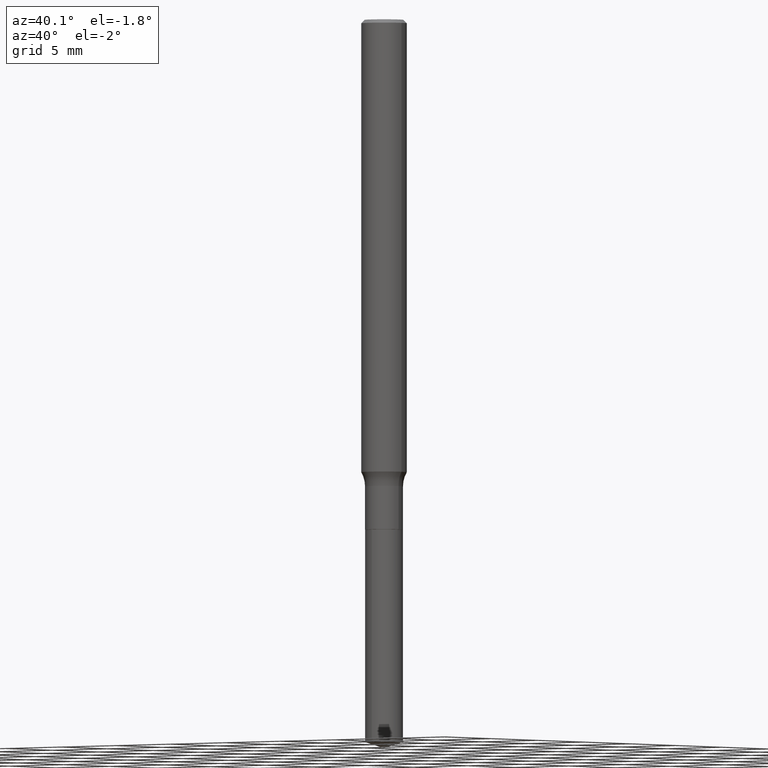
[diagram: clean part render]
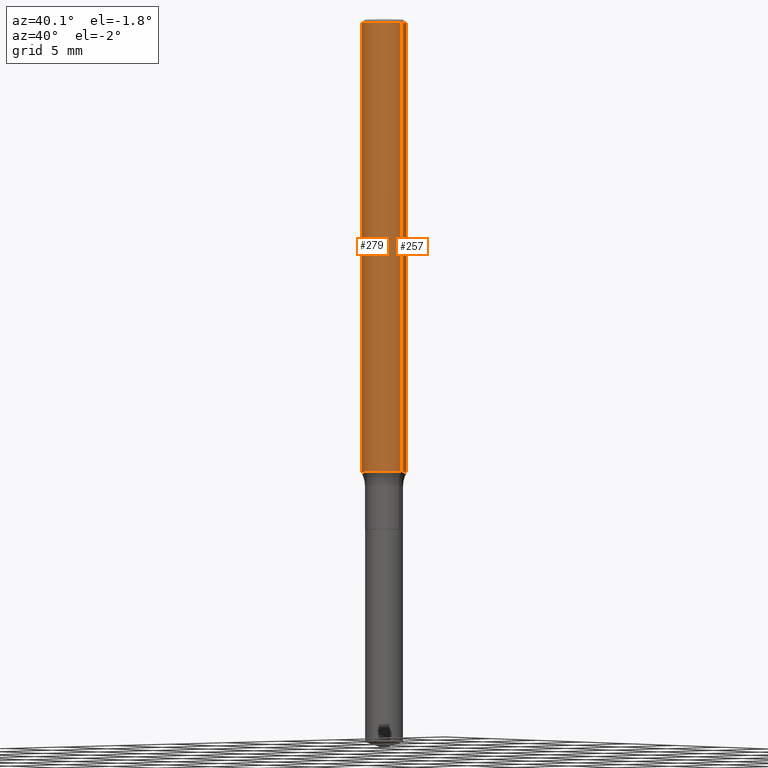
[diagram: same view with one multi-face feature highlighted, each face labeled with its STEP entity id]
A machine part, auxiliary view. The highlighted faces form ONE feature: a constant-radius fillet chain: 2 tangent blend faces with common blend radius 1.5875 mm. The faces share edges in the B-rep.
Their STEP definitions:
[1] entity #257 (Cylinder):
#18 = EDGE_CURVE ( 'NONE', #316, #53, #240, .T. ) ;
#22 = DIRECTION ( 'NONE',  ( -2.445468806185136597E-29, 3.491481338843145583E-15, 1.000000000000000000 ) ) ;
#28 = DIRECTION ( 'NONE',  ( -2.445468806185136877E-29, 3.491481338843145188E-15, 1.000000000000000000 ) ) ;
#29 = CARTESIAN_POINT ( 'NONE',  ( 0.000000000000000000, 0.000000000000000000, 0.000000000000000000 ) ) ;
#53 = VERTEX_POINT ( 'NONE', #54 ) ;
#54 = CARTESIAN_POINT ( 'NONE',  ( -0.06250000000000000000, -1.740859836076881399E-15, -0.009375000000000067307 ) ) ;
#76 = DIRECTION ( 'NONE',  ( 1.000000000000000000, -6.982962677686266711E-15, 0.000000000000000000 ) ) ;
#79 = AXIS2_PLACEMENT_3D ( 'NONE', #222, #22, #185 ) ;
#86 = CARTESIAN_POINT ( 'NONE',  ( -0.06250000000000008327, 4.440892098500632078E-16, -3.074334431409319967E-30 ) ) ;
#98 = CARTESIAN_POINT ( 'NONE',  ( 0.06250000000000016653, -4.773600621657630255E-15, -1.242213557337613405 ) ) ;
#101 = VECTOR ( 'NONE', #28, 39.37007874015748143 ) ;
#124 = AXIS2_PLACEMENT_3D ( 'NONE', #301, #417, #76 ) ;
#128 = ORIENTED_EDGE ( 'NONE', *, *, #409, .F. ) ;
#145 = EDGE_LOOP ( 'NONE', ( #206, #474, #128, #180 ) ) ;
#178 = CARTESIAN_POINT ( 'NONE',  ( 0.06250000000000000000, -4.691678049070464390E-16, -0.009375000000000067307 ) ) ;
#180 = ORIENTED_EDGE ( 'NONE', *, *, #465, .F. ) ;
#185 = DIRECTION ( 'NONE',  ( 1.000000000000000000, -6.982962677686259611E-15, 0.000000000000000000 ) ) ;
#206 = ORIENTED_EDGE ( 'NONE', *, *, #221, .T. ) ;
#221 = EDGE_CURVE ( 'NONE', #239, #316, #404, .T. ) ;
#222 = CARTESIAN_POINT ( 'NONE',  ( 3.037794505089405149E-29, -4.337165454302237008E-15, -1.242213557337613405 ) ) ;
#230 = FACE_OUTER_BOUND ( 'NONE', #145, .T. ) ;
#239 = VERTEX_POINT ( 'NONE', #98 ) ;
#240 = LINE ( 'NONE', #86, #307 ) ;
#257 = ADVANCED_FACE ( 'NONE', ( #230 ), #380, .T. ) ;
#264 = LINE ( 'NONE', #267, #101 ) ;
#267 = CARTESIAN_POINT ( 'NONE',  ( 0.06250000000000008327, -4.364351673553922611E-16, 3.047610484872464074E-30 ) ) ;
#274 = VERTEX_POINT ( 'NONE', #178 ) ;
#301 = CARTESIAN_POINT ( 'NONE',  ( 2.292627005798581937E-31, -3.273263755165472033E-17, -0.009375000000000067307 ) ) ;
#303 = AXIS2_PLACEMENT_3D ( 'NONE', #29, #339, #488 ) ;
#307 = VECTOR ( 'NONE', #390, 39.37007874015748143 ) ;
#316 = VERTEX_POINT ( 'NONE', #489 ) ;
#339 = DIRECTION ( 'NONE',  ( -2.445468806185136597E-29, 3.491481338843145583E-15, 1.000000000000000000 ) ) ;
#343 = CIRCLE ( 'NONE', #124, 0.06250000000000000000 ) ;
#380 = CYLINDRICAL_SURFACE ( 'NONE', #303, 0.06250000000000008327 ) ;
#390 = DIRECTION ( 'NONE',  ( -2.445468806185136877E-29, 3.491481338843145188E-15, 1.000000000000000000 ) ) ;
#404 = CIRCLE ( 'NONE', #79, 0.06250000000000016653 ) ;
#409 = EDGE_CURVE ( 'NONE', #274, #53, #343, .T. ) ;
#417 = DIRECTION ( 'NONE',  ( -2.445468806185136597E-29, 3.491481338843145583E-15, 1.000000000000000000 ) ) ;
#465 = EDGE_CURVE ( 'NONE', #239, #274, #264, .T. ) ;
#474 = ORIENTED_EDGE ( 'NONE', *, *, #18, .T. ) ;
#488 = DIRECTION ( 'NONE',  ( 1.000000000000000000, -6.982962677686266711E-15, 4.876176775795935793E-29 ) ) ;
#489 = CARTESIAN_POINT ( 'NONE',  ( -0.06250000000000016653, -3.893076244452172814E-15, -1.242213557337613405 ) ) ;
[2] entity #279 (Cylinder):
#18 = EDGE_CURVE ( 'NONE', #316, #53, #240, .T. ) ;
#28 = DIRECTION ( 'NONE',  ( -2.445468806185136877E-29, 3.491481338843145188E-15, 1.000000000000000000 ) ) ;
#43 = CARTESIAN_POINT ( 'NONE',  ( 3.037794505089405149E-29, -4.337165454302237008E-15, -1.242213557337613405 ) ) ;
#53 = VERTEX_POINT ( 'NONE', #54 ) ;
#54 = CARTESIAN_POINT ( 'NONE',  ( -0.06250000000000000000, -1.740859836076881399E-15, -0.009375000000000067307 ) ) ;
#59 = EDGE_CURVE ( 'NONE', #316, #239, #91, .T. ) ;
#64 = DIRECTION ( 'NONE',  ( 1.000000000000000000, -6.982962677686266711E-15, 0.000000000000000000 ) ) ;
#72 = AXIS2_PLACEMENT_3D ( 'NONE', #189, #99, #64 ) ;
#80 = AXIS2_PLACEMENT_3D ( 'NONE', #43, #394, #203 ) ;
#86 = CARTESIAN_POINT ( 'NONE',  ( -0.06250000000000008327, 4.440892098500632078E-16, -3.074334431409319967E-30 ) ) ;
#90 = ORIENTED_EDGE ( 'NONE', *, *, #59, .T. ) ;
#91 = CIRCLE ( 'NONE', #80, 0.06250000000000016653 ) ;
#96 = CARTESIAN_POINT ( 'NONE',  ( 0.000000000000000000, 0.000000000000000000, 0.000000000000000000 ) ) ;
#98 = CARTESIAN_POINT ( 'NONE',  ( 0.06250000000000016653, -4.773600621657630255E-15, -1.242213557337613405 ) ) ;
#99 = DIRECTION ( 'NONE',  ( -2.445468806185136597E-29, 3.491481338843145583E-15, 1.000000000000000000 ) ) ;
#101 = VECTOR ( 'NONE', #28, 39.37007874015748143 ) ;
#120 = AXIS2_PLACEMENT_3D ( 'NONE', #96, #186, #150 ) ;
#150 = DIRECTION ( 'NONE',  ( 1.000000000000000000, -6.982962677686266711E-15, 4.876176775795935793E-29 ) ) ;
#176 = CIRCLE ( 'NONE', #72, 0.06250000000000000000 ) ;
#178 = CARTESIAN_POINT ( 'NONE',  ( 0.06250000000000000000, -4.691678049070464390E-16, -0.009375000000000067307 ) ) ;
#186 = DIRECTION ( 'NONE',  ( -2.445468806185136597E-29, 3.491481338843145583E-15, 1.000000000000000000 ) ) ;
#189 = CARTESIAN_POINT ( 'NONE',  ( 2.292627005798581937E-31, -3.273263755165472033E-17, -0.009375000000000067307 ) ) ;
#203 = DIRECTION ( 'NONE',  ( 1.000000000000000000, -6.982962677686259611E-15, 0.000000000000000000 ) ) ;
#209 = ORIENTED_EDGE ( 'NONE', *, *, #337, .F. ) ;
#239 = VERTEX_POINT ( 'NONE', #98 ) ;
#240 = LINE ( 'NONE', #86, #307 ) ;
#264 = LINE ( 'NONE', #267, #101 ) ;
#267 = CARTESIAN_POINT ( 'NONE',  ( 0.06250000000000008327, -4.364351673553922611E-16, 3.047610484872464074E-30 ) ) ;
#274 = VERTEX_POINT ( 'NONE', #178 ) ;
#279 = ADVANCED_FACE ( 'NONE', ( #325 ), #478, .T. ) ;
#307 = VECTOR ( 'NONE', #390, 39.37007874015748143 ) ;
#316 = VERTEX_POINT ( 'NONE', #489 ) ;
#325 = FACE_OUTER_BOUND ( 'NONE', #397, .T. ) ;
#337 = EDGE_CURVE ( 'NONE', #53, #274, #176, .T. ) ;
#361 = ORIENTED_EDGE ( 'NONE', *, *, #465, .T. ) ;
#390 = DIRECTION ( 'NONE',  ( -2.445468806185136877E-29, 3.491481338843145188E-15, 1.000000000000000000 ) ) ;
#394 = DIRECTION ( 'NONE',  ( -2.445468806185136597E-29, 3.491481338843145583E-15, 1.000000000000000000 ) ) ;
#397 = EDGE_LOOP ( 'NONE', ( #470, #90, #361, #209 ) ) ;
#465 = EDGE_CURVE ( 'NONE', #239, #274, #264, .T. ) ;
#470 = ORIENTED_EDGE ( 'NONE', *, *, #18, .F. ) ;
#478 = CYLINDRICAL_SURFACE ( 'NONE', #120, 0.06250000000000008327 ) ;
#489 = CARTESIAN_POINT ( 'NONE',  ( -0.06250000000000016653, -3.893076244452172814E-15, -1.242213557337613405 ) ) ;